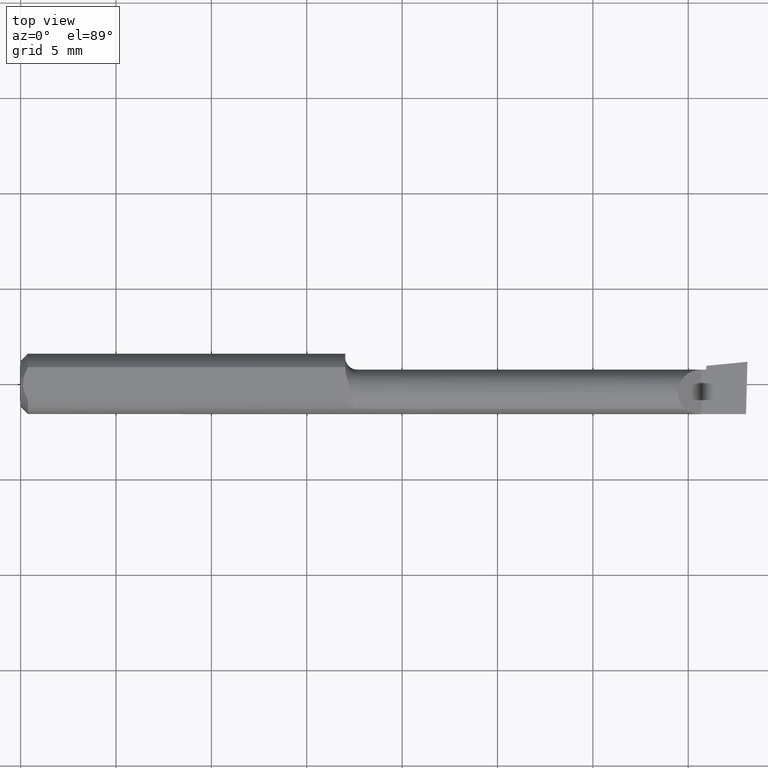
[diagram: clean part render]
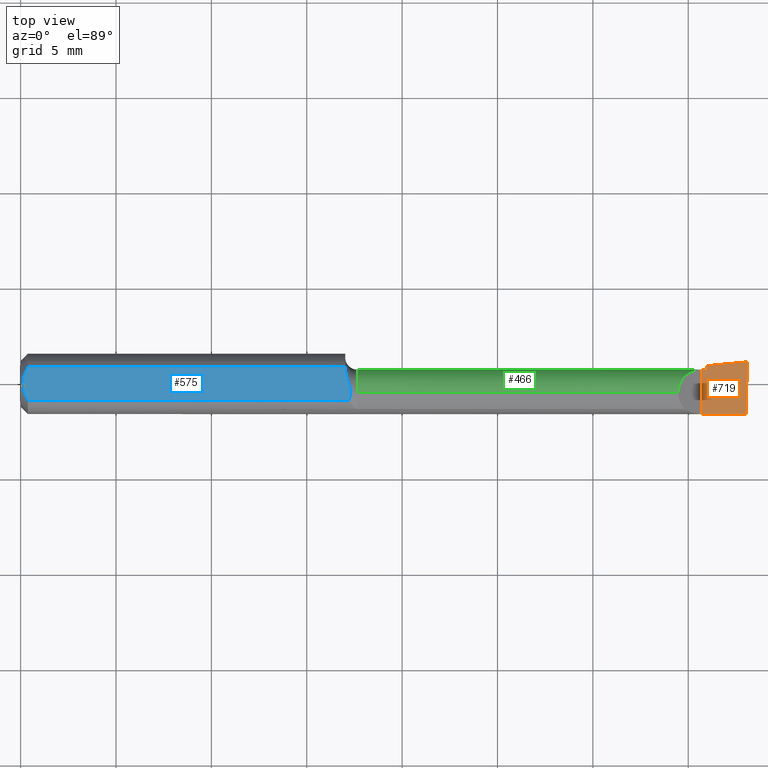
[diagram: same view with three faces highlighted in distinct colors, each labeled with its STEP entity id]
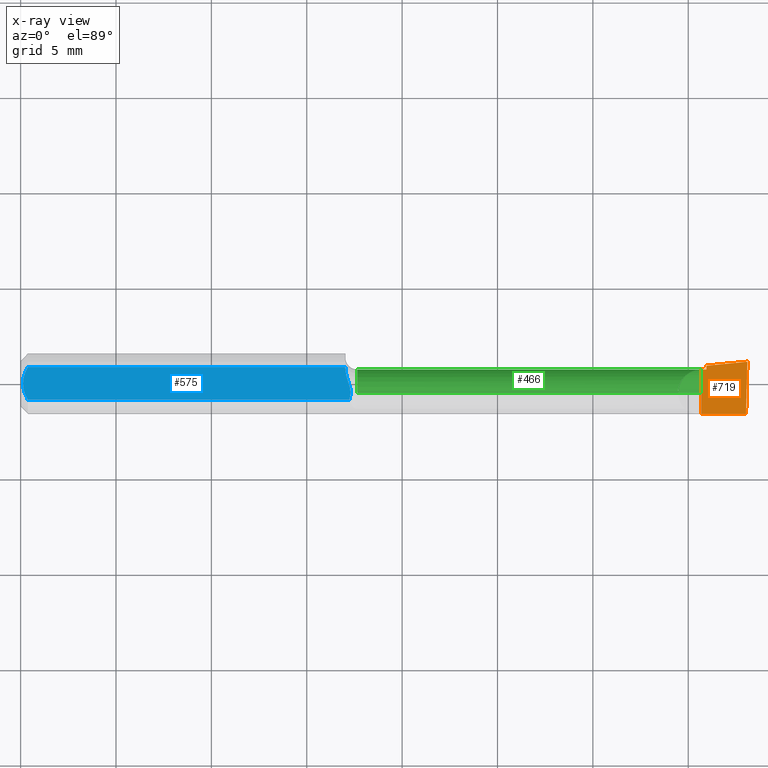
[diagram: x-ray of the same camera — body ghosted, the three highlighted faces saturated]
A machine part, top view with three faces highlighted in distinct colors.
The next image is the same camera in x-ray (body ghosted, the three faces saturated) — at least one of them is partly hidden behind the body in this view.
Their STEP definitions:

[orange] entity #719 — the highlighted planar face has unit normal (-0, 0, -1).
#10 = ORIENTED_EDGE ( 'NONE', *, *, #544, .F. ) ;
#18 = DIRECTION ( 'NONE',  ( -1.224646799147350495E-16, 0.000000000000000000, -1.000000000000000000 ) ) ;
#24 = CARTESIAN_POINT ( 'NONE',  ( 1.415000000000000036, -0.2500000000000000555, 1.040949779275248537E-17 ) ) ;
#29 = LINE ( 'NONE', #24, #79 ) ;
#40 = CARTESIAN_POINT ( 'NONE',  ( 1.405000000000000249, 0.02964999999999988131, 1.163414459189982046E-17 ) ) ;
#77 = EDGE_CURVE ( 'NONE', #403, #343, #424, .T. ) ;
#79 = VECTOR ( 'NONE', #357, 39.37007874015748143 ) ;
#103 = CARTESIAN_POINT ( 'NONE',  ( 1.415000000000000036, 0.03746543090321039632, 1.856802933193678953E-16 ) ) ;
#127 = ORIENTED_EDGE ( 'NONE', *, *, #312, .F. ) ;
#138 = CARTESIAN_POINT ( 'NONE',  ( 1.492263437268387616, -0.2497974109750948912, 9.474556785672113677E-19 ) ) ;
#150 = DIRECTION ( 'NONE',  ( 1.000000000000000000, 0.000000000000000000, 0.000000000000000000 ) ) ;
#164 = ORIENTED_EDGE ( 'NONE', *, *, #711, .T. ) ;
#165 = ORIENTED_EDGE ( 'NONE', *, *, #369, .F. ) ;
#170 = LINE ( 'NONE', #441, #664 ) ;
#171 = VECTOR ( 'NONE', #194, 39.37007874015748143 ) ;
#194 = DIRECTION ( 'NONE',  ( 0.02617694830787660465, 0.9996573249755572599, -3.158139334224220088E-18 ) ) ;
#198 = CARTESIAN_POINT ( 'NONE',  ( 1.500000000000000222, -0.2500000000000000555, 0.000000000000000000 ) ) ;
#213 = VERTEX_POINT ( 'NONE', #309 ) ;
#266 = VERTEX_POINT ( 'NONE', #474 ) ;
#284 = EDGE_CURVE ( 'NONE', #343, #385, #29, .T. ) ;
#288 = DIRECTION ( 'NONE',  ( -0.000000000000000000, 1.000000000000000000, -0.000000000000000000 ) ) ;
#308 = LINE ( 'NONE', #138, #171 ) ;
#309 = CARTESIAN_POINT ( 'NONE',  ( 1.500000000000005551, 0.04565000000000925956, 2.866279458899363243E-14 ) ) ;
#312 = EDGE_CURVE ( 'NONE', #385, #213, #598, .T. ) ;
#331 = EDGE_LOOP ( 'NONE', ( #165, #164, #127, #608, #547, #10 ) ) ;
#343 = VERTEX_POINT ( 'NONE', #415 ) ;
#348 = LINE ( 'NONE', #520, #589 ) ;
#357 = DIRECTION ( 'NONE',  ( 0.000000000000000000, 1.000000000000000000, 0.000000000000000000 ) ) ;
#369 = EDGE_CURVE ( 'NONE', #266, #572, #170, .T. ) ;
#385 = VERTEX_POINT ( 'NONE', #103 ) ;
#403 = VERTEX_POINT ( 'NONE', #40 ) ;
#415 = CARTESIAN_POINT ( 'NONE',  ( 1.415000000000000036, 0.02964999999999999927, 1.836970198721027715E-16 ) ) ;
#424 = LINE ( 'NONE', #657, #587 ) ;
#441 = CARTESIAN_POINT ( 'NONE',  ( 2.249639673992775738E-32, -0.06234999999999999570, 1.836970198721025250E-16 ) ) ;
#462 = VECTOR ( 'NONE', #537, 39.37007874015748143 ) ;
#469 = DIRECTION ( 'NONE',  ( -1.000000000000000000, 0.000000000000000000, 1.224646799147350495E-16 ) ) ;
#474 = CARTESIAN_POINT ( 'NONE',  ( 1.497171920470529161, -0.06235000000000005121, 3.552677088412709094E-19 ) ) ;
#520 = CARTESIAN_POINT ( 'NONE',  ( 1.405000000000000249, -0.2500000000000000555, 1.163414459189982046E-17 ) ) ;
#528 = FACE_OUTER_BOUND ( 'NONE', #331, .T. ) ;
#537 = DIRECTION ( 'NONE',  ( 0.9953961983671787417, 0.09584575252022461966, -1.219008768213806398E-16 ) ) ;
#544 = EDGE_CURVE ( 'NONE', #572, #403, #348, .T. ) ;
#547 = ORIENTED_EDGE ( 'NONE', *, *, #77, .F. ) ;
#564 = CARTESIAN_POINT ( 'NONE',  ( 1.405000000000000249, -0.06235000000000005121, 1.163414459189982046E-17 ) ) ;
#572 = VERTEX_POINT ( 'NONE', #564 ) ;
#585 = PLANE ( 'NONE',  #683 ) ;
#587 = VECTOR ( 'NONE', #150, 39.37007874015748143 ) ;
#589 = VECTOR ( 'NONE', #288, 39.37007874015748143 ) ;
#598 = LINE ( 'NONE', #710, #462 ) ;
#608 = ORIENTED_EDGE ( 'NONE', *, *, #284, .F. ) ;
#610 = DIRECTION ( 'NONE',  ( -1.000000000000000000, -0.000000000000000000, -0.000000000000000000 ) ) ;
#657 = CARTESIAN_POINT ( 'NONE',  ( 2.249639673992775738E-32, 0.02964999999999994029, 1.836970198721025250E-16 ) ) ;
#664 = VECTOR ( 'NONE', #610, 39.37007874015748143 ) ;
#683 = AXIS2_PLACEMENT_3D ( 'NONE', #198, #18, #469 ) ;
#710 = CARTESIAN_POINT ( 'NONE',  ( 0.8348153170171558335, -0.01839999999999999969, 8.146162928567849885E-17 ) ) ;
#711 = EDGE_CURVE ( 'NONE', #266, #213, #308, .T. ) ;
#719 = ADVANCED_FACE ( 'NONE', ( #528 ), #585, .F. ) ;

[blue] entity #575 — the highlighted planar face has unit normal (0, -0, -1).
#4 = VERTEX_POINT ( 'NONE', #535 ) ;
#7 = ORIENTED_EDGE ( 'NONE', *, *, #339, .F. ) ;
#22 = CARTESIAN_POINT ( 'NONE',  ( 0.6700000000000000400, 0.03254879782683776229, 0.05235000000000000070 ) ) ;
#45 = B_SPLINE_CURVE_WITH_KNOTS ( 'NONE', 3,
 ( #707, #146, #482, #136, #712, #251 ),
 .UNSPECIFIED., .F., .F.,
 ( 4, 2, 4 ),
 ( 0.002133667072902290223, 0.002585433046183635737, 0.003037199019464981251 ),
 .UNSPECIFIED. ) ;
#48 = LINE ( 'NONE', #217, #61 ) ;
#50 = DIRECTION ( 'NONE',  ( 1.000000000000000000, 0.000000000000000000, 0.000000000000000000 ) ) ;
#57 = ORIENTED_EDGE ( 'NONE', *, *, #237, .F. ) ;
#59 = EDGE_CURVE ( 'NONE', #480, #380, #488, .T. ) ;
#61 = VECTOR ( 'NONE', #546, 39.37007874015748143 ) ;
#62 = VERTEX_POINT ( 'NONE', #271 ) ;
#78 = CARTESIAN_POINT ( 'NONE',  ( 0.6778289663216180427, -0.001899322570691870226, 0.05234999999999997988 ) ) ;
#126 = LINE ( 'NONE', #455, #183 ) ;
#135 = EDGE_CURVE ( 'NONE', #4, #480, #563, .T. ) ;
#136 = CARTESIAN_POINT ( 'NONE',  ( 0.006057557792978150897, -0.01187252718384441963, 0.05234999999999998682 ) ) ;
#144 = CARTESIAN_POINT ( 'NONE',  ( 0.01500000000000185039, -0.03386738844380016850, 0.05235000000000000070 ) ) ;
#146 = CARTESIAN_POINT ( 'NONE',  ( 0.01216137397042176341, -0.02864146636719542074, 0.05235000000000000070 ) ) ;
#180 = DIRECTION ( 'NONE',  ( 0.000000000000000000, -7.598598113218357399E-17, -1.000000000000000000 ) ) ;
#182 = ORIENTED_EDGE ( 'NONE', *, *, #405, .F. ) ;
#183 = VECTOR ( 'NONE', #406, 39.37007874015748143 ) ;
#197 = CARTESIAN_POINT ( 'NONE',  ( 0.6781439896686971558, -0.03386738844377056717, 0.05235000000000000070 ) ) ;
#199 = CARTESIAN_POINT ( 'NONE',  ( 0.6801689947020402860, -0.01001121285792194726, 0.05235000000000000764 ) ) ;
#202 = CARTESIAN_POINT ( 'NONE',  ( 0.6700000000000000400, 0.03254879782683776229, 0.05235000000000000070 ) ) ;
#203 = EDGE_LOOP ( 'NONE', ( #57, #310, #605, #394, #253, #182, #7 ) ) ;
#206 = CARTESIAN_POINT ( 'NONE',  ( 0.6757332775895888988, 0.004426912553965423741, 0.05234999999999998682 ) ) ;
#217 = CARTESIAN_POINT ( 'NONE',  ( 0.000000000000000000, -0.03386738844375222768, 0.05234999999999997988 ) ) ;
#237 = EDGE_CURVE ( 'NONE', #603, #62, #477, .T. ) ;
#238 = CARTESIAN_POINT ( 'NONE',  ( 0.01218518006020415101, 0.02868529347538066598, 0.05235000000000000070 ) ) ;
#241 = CARTESIAN_POINT ( 'NONE',  ( 0.6764444859557653400, 0.002321921504986928370, 0.05234999999999998682 ) ) ;
#251 = CARTESIAN_POINT ( 'NONE',  ( 0.004999999999989946514, 7.898418262501303575E-16, 0.05235000000000000070 ) ) ;
#253 = ORIENTED_EDGE ( 'NONE', *, *, #700, .F. ) ;
#271 = CARTESIAN_POINT ( 'NONE',  ( 0.6809817975471365026, -0.01840000000000274055, 0.05235000000000000070 ) ) ;
#274 = VERTEX_POINT ( 'NONE', #144 ) ;
#285 = FACE_OUTER_BOUND ( 'NONE', #203, .T. ) ;
#290 = CARTESIAN_POINT ( 'NONE',  ( 0.004999999999989946514, 7.898418262501303575E-16, 0.05235000000000000070 ) ) ;
#302 = CARTESIAN_POINT ( 'NONE',  ( 0.6699999999999991518, 0.02370330699131434002, 0.05235000000000000070 ) ) ;
#310 = ORIENTED_EDGE ( 'NONE', *, *, #590, .F. ) ;
#314 = CARTESIAN_POINT ( 'NONE',  ( 0.6809817975474691254, -0.02106709414031688460, 0.05235000000000000070 ) ) ;
#339 = EDGE_CURVE ( 'NONE', #62, #596, #562, .T. ) ;
#373 = CARTESIAN_POINT ( 'NONE',  ( 0.6809817975471365026, -0.01840000000000274055, 0.05235000000000000070 ) ) ;
#380 = VERTEX_POINT ( 'NONE', #723 ) ;
#394 = ORIENTED_EDGE ( 'NONE', *, *, #135, .F. ) ;
#395 = CARTESIAN_POINT ( 'NONE',  ( 0.01500000000000000465, 0.03386738844375223462, 0.05234999999999997988 ) ) ;
#398 = CARTESIAN_POINT ( 'NONE',  ( 0.006064493299689855191, 0.01189382783781397362, 0.05235000000000000070 ) ) ;
#402 = DIRECTION ( 'NONE',  ( 0.000000000000000000, 1.000000000000000000, -7.598598113218357399E-17 ) ) ;
#404 = CARTESIAN_POINT ( 'NONE',  ( 0.009669996313769786342, 0.02323004575534281385, 0.05234999999999998682 ) ) ;
#405 = EDGE_CURVE ( 'NONE', #596, #274, #48, .T. ) ;
#406 = DIRECTION ( 'NONE',  ( 0.000000000000000000, -1.000000000000000000, 7.598598113218357399E-17 ) ) ;
#411 = CARTESIAN_POINT ( 'NONE',  ( 1.500000000000000222, 0.1123499999999999915, 0.05234999999999998682 ) ) ;
#455 = CARTESIAN_POINT ( 'NONE',  ( 0.6700000000000000400, 0.1123499999999999915, 0.05234999999999998682 ) ) ;
#457 = CARTESIAN_POINT ( 'NONE',  ( 0.004999999999999278459, 0.005945714695019506738, 0.05235000000000000070 ) ) ;
#465 = CARTESIAN_POINT ( 'NONE',  ( 0.6796390223050100543, -0.02881514531779551247, 0.05234999999999998682 ) ) ;
#468 = PLANE ( 'NONE',  #715 ) ;
#477 = B_SPLINE_CURVE_WITH_KNOTS ( 'NONE', 3,
 ( #202, #302, #713, #206, #241, #78, #650, #199, #586, #526 ),
 .UNSPECIFIED., .F., .F.,
 ( 4, 2, 2, 2, 4 ),
 ( 0.008710904206567183714, 0.009350419755586120152, 0.009510298642840853828, 0.009670177530095589238, 0.009989935304605060060 ),
 .UNSPECIFIED. ) ;
#480 = VERTEX_POINT ( 'NONE', #559 ) ;
#482 = CARTESIAN_POINT ( 'NONE',  ( 0.009678036133109314473, -0.02325481837211496733, 0.05235000000000000070 ) ) ;
#488 = LINE ( 'NONE', #724, #523 ) ;
#523 = VECTOR ( 'NONE', #50, 39.37007874015748143 ) ;
#526 = CARTESIAN_POINT ( 'NONE',  ( 0.6809817975471365026, -0.01840000000000274055, 0.05235000000000000070 ) ) ;
#535 = CARTESIAN_POINT ( 'NONE',  ( 0.004999999999989946514, 7.898418262501303575E-16, 0.05235000000000000070 ) ) ;
#542 = CARTESIAN_POINT ( 'NONE',  ( 0.6806711879428685164, -0.02367561104898163390, 0.05235000000000000070 ) ) ;
#546 = DIRECTION ( 'NONE',  ( -1.000000000000000000, -0.000000000000000000, -0.000000000000000000 ) ) ;
#559 = CARTESIAN_POINT ( 'NONE',  ( 0.01500000000000000465, 0.03386738844375223462, 0.05234999999999997988 ) ) ;
#562 = B_SPLINE_CURVE_WITH_KNOTS ( 'NONE', 3,
 ( #373, #314, #542, #465, #708, #197 ),
 .UNSPECIFIED., .F., .F.,
 ( 4, 2, 4 ),
 ( 0.0004198066361325403055, 0.0006196367099741891546, 0.0008194667838158380038 ),
 .UNSPECIFIED. ) ;
#563 = B_SPLINE_CURVE_WITH_KNOTS ( 'NONE', 3,
 ( #290, #457, #398, #404, #238, #395 ),
 .UNSPECIFIED., .F., .F.,
 ( 4, 2, 4 ),
 ( 0.003037199019464981251, 0.003488061124369675782, 0.003938923229274369879 ),
 .UNSPECIFIED. ) ;
#575 = ADVANCED_FACE ( 'NONE', ( #285 ), #468, .F. ) ;
#586 = CARTESIAN_POINT ( 'NONE',  ( 0.6809817975474822260, -0.01413225355780895788, 0.05235000000000000764 ) ) ;
#590 = EDGE_CURVE ( 'NONE', #380, #603, #126, .T. ) ;
#596 = VERTEX_POINT ( 'NONE', #627 ) ;
#603 = VERTEX_POINT ( 'NONE', #22 ) ;
#605 = ORIENTED_EDGE ( 'NONE', *, *, #59, .F. ) ;
#627 = CARTESIAN_POINT ( 'NONE',  ( 0.6781439896686971558, -0.03386738844377056717, 0.05235000000000000070 ) ) ;
#650 = CARTESIAN_POINT ( 'NONE',  ( 0.6784726880402973670, -0.003926822060867695384, 0.05235000000000000070 ) ) ;
#700 = EDGE_CURVE ( 'NONE', #274, #4, #45, .T. ) ;
#707 = CARTESIAN_POINT ( 'NONE',  ( 0.01500000000000185039, -0.03386738844380016850, 0.05235000000000000070 ) ) ;
#708 = CARTESIAN_POINT ( 'NONE',  ( 0.6789259844007440314, -0.03134776909451145871, 0.05235000000000000070 ) ) ;
#712 = CARTESIAN_POINT ( 'NONE',  ( 0.004999999999998894218, -0.005957634400466962389, 0.05235000000000000070 ) ) ;
#713 = CARTESIAN_POINT ( 'NONE',  ( 0.6723037607715414143, 0.01498942864105872082, 0.05235000000000000070 ) ) ;
#715 = AXIS2_PLACEMENT_3D ( 'NONE', #411, #180, #402 ) ;
#723 = CARTESIAN_POINT ( 'NONE',  ( 0.6700000000000000400, 0.03386738844375224156, 0.05235000000000000070 ) ) ;
#724 = CARTESIAN_POINT ( 'NONE',  ( 0.000000000000000000, 0.03386738844375223462, 0.05234999999999997988 ) ) ;

[green] entity #466 — the highlighted cylindrical surface (edge-blend (fillet) strip) has radius 1.2205 mm, axis along (-1, -0, -0).
#34 = CARTESIAN_POINT ( 'NONE',  ( 1.356949999999999656, 0.009747038327972754393, 0.04804999999999993998 ) ) ;
#40 = CARTESIAN_POINT ( 'NONE',  ( 1.405000000000000249, 0.02964999999999988131, 1.163414459189982046E-17 ) ) ;
#53 = ORIENTED_EDGE ( 'NONE', *, *, #84, .F. ) ;
#68 = CARTESIAN_POINT ( 'NONE',  ( 0.000000000000000000, -0.01839999999999999275, -0.04804999999999994692 ) ) ;
#75 = CIRCLE ( 'NONE', #553, 0.04805000000000000243 ) ;
#77 = EDGE_CURVE ( 'NONE', #403, #343, #424, .T. ) ;
#84 = EDGE_CURVE ( 'NONE', #119, #289, #629, .T. ) ;
#100 = ORIENTED_EDGE ( 'NONE', *, *, #303, .F. ) ;
#108 = DIRECTION ( 'NONE',  ( 1.000000000000000000, 0.000000000000000000, 0.000000000000000000 ) ) ;
#118 = FACE_OUTER_BOUND ( 'NONE', #257, .T. ) ;
#119 = VERTEX_POINT ( 'NONE', #179 ) ;
#132 = LINE ( 'NONE', #68, #506 ) ;
#140 = CIRCLE ( 'NONE', #705, 0.04804999999999994692 ) ;
#147 = CARTESIAN_POINT ( 'NONE',  ( 0.000000000000000000, -0.01839999999999999969, 0.04804999999999994692 ) ) ;
#150 = DIRECTION ( 'NONE',  ( 1.000000000000000000, 0.000000000000000000, 0.000000000000000000 ) ) ;
#179 = CARTESIAN_POINT ( 'NONE',  ( 0.6950000000000000622, -0.01839999999999999969, 0.04804999999999990529 ) ) ;
#193 =( BOUNDED_CURVE ( )  B_SPLINE_CURVE ( 3, ( #420, #34, #709, #473 ),
 .UNSPECIFIED., .F., .F. ) 
 B_SPLINE_CURVE_WITH_KNOTS ( ( 4, 4 ),
 ( 0.000000000000000000, 1.570796326794896558 ),
 .UNSPECIFIED. ) 
 CURVE ( )  GEOMETRIC_REPRESENTATION_ITEM ( )  RATIONAL_B_SPLINE_CURVE ( ( 1.000000000000000000, 0.8047378541243649375, 0.8047378541243649375, 1.000000000000000000 ) ) 
 REPRESENTATION_ITEM ( '' )  );
#234 = DIRECTION ( 'NONE',  ( -1.000000000000000000, -0.000000000000000000, -0.000000000000000000 ) ) ;
#257 = EDGE_LOOP ( 'NONE', ( #306, #438, #53, #100, #681, #615, #550, #286 ) ) ;
#261 = VERTEX_POINT ( 'NONE', #720 ) ;
#281 = DIRECTION ( 'NONE',  ( -1.000000000000000000, -0.000000000000000000, -0.000000000000000000 ) ) ;
#286 = ORIENTED_EDGE ( 'NONE', *, *, #461, .F. ) ;
#289 = VERTEX_POINT ( 'NONE', #422 ) ;
#294 = AXIS2_PLACEMENT_3D ( 'NONE', #634, #281, #507 ) ;
#303 = EDGE_CURVE ( 'NONE', #261, #119, #655, .T. ) ;
#306 = ORIENTED_EDGE ( 'NONE', *, *, #588, .T. ) ;
#329 = CARTESIAN_POINT ( 'NONE',  ( 0.000000000000000000, -0.01839999999999999969, 0.000000000000000000 ) ) ;
#343 = VERTEX_POINT ( 'NONE', #415 ) ;
#367 = DIRECTION ( 'NONE',  ( 0.000000000000000000, 0.000000000000000000, 1.000000000000000000 ) ) ;
#368 = DIRECTION ( 'NONE',  ( -1.000000000000000000, -0.000000000000000000, -0.000000000000000000 ) ) ;
#371 = CARTESIAN_POINT ( 'NONE',  ( 0.6950000000000000622, -0.01839999999999999969, 0.000000000000000000 ) ) ;
#390 = DIRECTION ( 'NONE',  ( -1.000000000000000000, -0.000000000000000000, -0.000000000000000000 ) ) ;
#403 = VERTEX_POINT ( 'NONE', #40 ) ;
#415 = CARTESIAN_POINT ( 'NONE',  ( 1.415000000000000036, 0.02964999999999999927, 1.836970198721027715E-16 ) ) ;
#420 = CARTESIAN_POINT ( 'NONE',  ( 1.356949999999999878, -0.01839999999999999969, 0.04804999999999994692 ) ) ;
#422 = CARTESIAN_POINT ( 'NONE',  ( 0.6950000000000000622, -0.01839999999999999275, -0.04804999999999990529 ) ) ;
#424 = LINE ( 'NONE', #657, #587 ) ;
#438 = ORIENTED_EDGE ( 'NONE', *, *, #521, .T. ) ;
#456 = VERTEX_POINT ( 'NONE', #624 ) ;
#461 = EDGE_CURVE ( 'NONE', #456, #580, #140, .T. ) ;
#466 = ADVANCED_FACE ( 'NONE', ( #118 ), #486, .T. ) ;
#473 = CARTESIAN_POINT ( 'NONE',  ( 1.405000000000000249, 0.02964999999999988131, 1.163414459189982046E-17 ) ) ;
#476 = CARTESIAN_POINT ( 'NONE',  ( 1.415000000000000036, -0.01839999999999999969, 0.000000000000000000 ) ) ;
#486 = CYLINDRICAL_SURFACE ( 'NONE', #601, 0.04804999999999994692 ) ;
#495 = CIRCLE ( 'NONE', #294, 0.04805000000000000243 ) ;
#499 = DIRECTION ( 'NONE',  ( 0.000000000000000000, 3.553392291446756231E-15, 1.000000000000000000 ) ) ;
#506 = VECTOR ( 'NONE', #234, 39.37007874015748143 ) ;
#507 = DIRECTION ( 'NONE',  ( 0.000000000000000000, 0.000000000000000000, 1.000000000000000000 ) ) ;
#521 = EDGE_CURVE ( 'NONE', #675, #289, #132, .T. ) ;
#550 = ORIENTED_EDGE ( 'NONE', *, *, #736, .T. ) ;
#553 = AXIS2_PLACEMENT_3D ( 'NONE', #476, #597, #367 ) ;
#554 = DIRECTION ( 'NONE',  ( -1.000000000000000000, -0.000000000000000000, -0.000000000000000000 ) ) ;
#561 = DIRECTION ( 'NONE',  ( 0.000000000000000000, 0.000000000000000000, 1.000000000000000000 ) ) ;
#580 = VERTEX_POINT ( 'NONE', #642 ) ;
#581 = AXIS2_PLACEMENT_3D ( 'NONE', #371, #390, #561 ) ;
#587 = VECTOR ( 'NONE', #150, 39.37007874015748143 ) ;
#588 = EDGE_CURVE ( 'NONE', #456, #675, #495, .T. ) ;
#597 = DIRECTION ( 'NONE',  ( -1.000000000000000000, -0.000000000000000000, -0.000000000000000000 ) ) ;
#601 = AXIS2_PLACEMENT_3D ( 'NONE', #329, #554, #679 ) ;
#613 = CARTESIAN_POINT ( 'NONE',  ( 1.415000000000000036, -0.01839999999999999969, 0.000000000000000000 ) ) ;
#615 = ORIENTED_EDGE ( 'NONE', *, *, #77, .T. ) ;
#624 = CARTESIAN_POINT ( 'NONE',  ( 1.415000000000000036, 0.007456147106387405604, -0.04050015008383116288 ) ) ;
#629 = CIRCLE ( 'NONE', #581, 0.04804999999999990529 ) ;
#634 = CARTESIAN_POINT ( 'NONE',  ( 1.415000000000000036, -0.01839999999999999969, 0.000000000000000000 ) ) ;
#642 = CARTESIAN_POINT ( 'NONE',  ( 1.415000000000000036, 0.02286474879319023643, -0.02461753454420039650 ) ) ;
#646 = CARTESIAN_POINT ( 'NONE',  ( 1.415000000000000036, -0.01839999999999999969, -0.04804999999999998855 ) ) ;
#648 = EDGE_CURVE ( 'NONE', #261, #403, #193, .T. ) ;
#655 = LINE ( 'NONE', #147, #695 ) ;
#657 = CARTESIAN_POINT ( 'NONE',  ( 2.249639673992775738E-32, 0.02964999999999994029, 1.836970198721025250E-16 ) ) ;
#675 = VERTEX_POINT ( 'NONE', #646 ) ;
#679 = DIRECTION ( 'NONE',  ( 0.000000000000000000, 0.000000000000000000, 1.000000000000000000 ) ) ;
#681 = ORIENTED_EDGE ( 'NONE', *, *, #648, .T. ) ;
#695 = VECTOR ( 'NONE', #368, 39.37007874015748143 ) ;
#705 = AXIS2_PLACEMENT_3D ( 'NONE', #613, #108, #499 ) ;
#709 = CARTESIAN_POINT ( 'NONE',  ( 1.376852961672026865, 0.02964999999999994376, 0.02814703832797275582 ) ) ;
#720 = CARTESIAN_POINT ( 'NONE',  ( 1.356949999999999878, -0.01839999999999999969, 0.04804999999999994692 ) ) ;
#736 = EDGE_CURVE ( 'NONE', #343, #580, #75, .T. ) ;